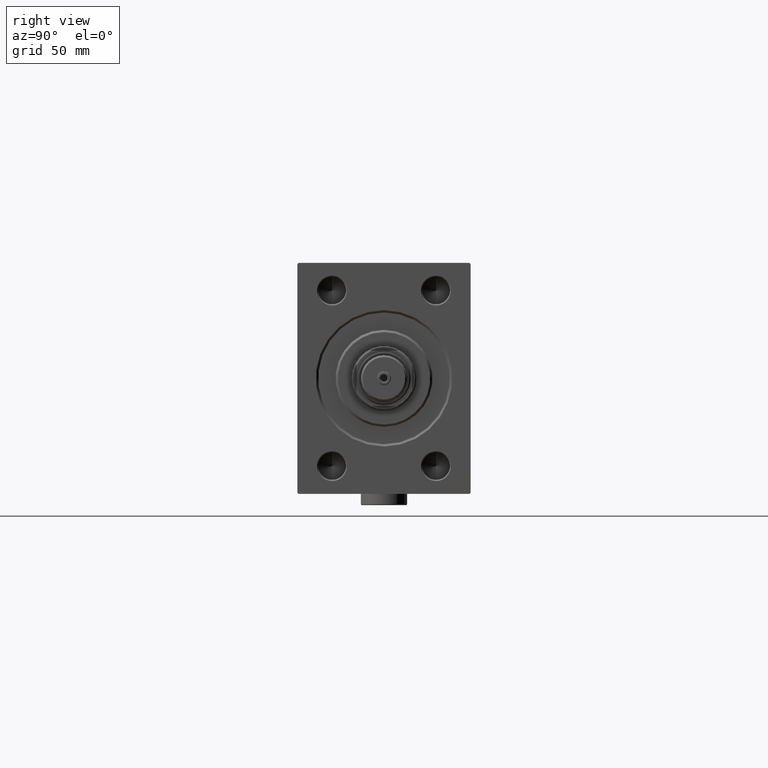
[diagram: clean part render]
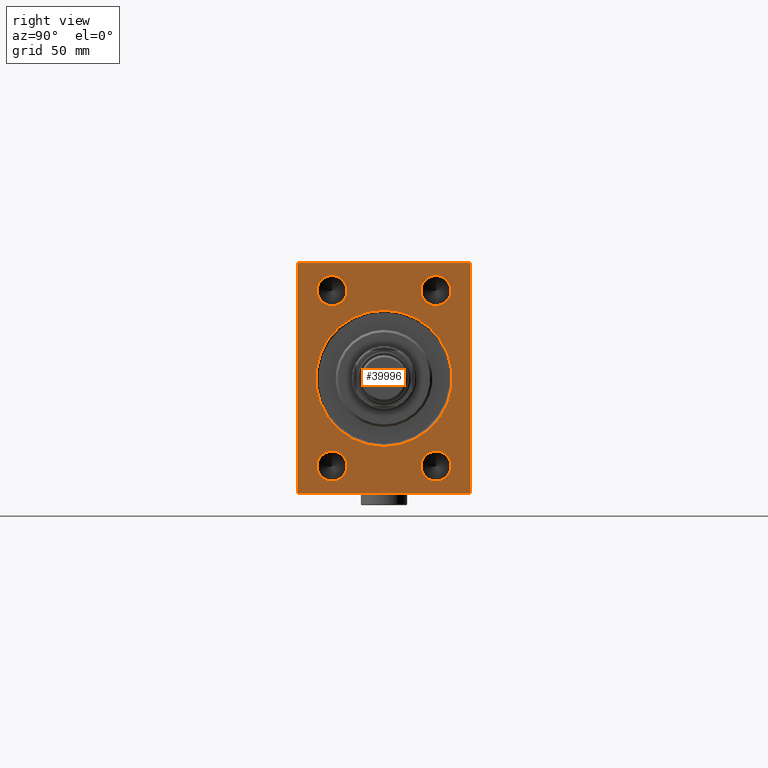
[diagram: same view with one face highlighted and labeled with its STEP entity id]
A machine part, right view. The second image highlights one B-rep face of the part: STEP entity #39996.
In plain terms, the highlighted planar face has unit normal (-1, 0, 0).
Its self-contained STEP definition (entity closure, byte-faithful):
#122 = CARTESIAN_POINT ( 'NONE',  ( 0.000000000000000000, 22.49999999999999289, -31.49999999999996447 ) ) ;
#128 = EDGE_CURVE ( 'NONE', #40399, #1513, #21583, .T. ) ;
#229 = VECTOR ( 'NONE', #32900, 1000.000000000000000 ) ;
#560 = VECTOR ( 'NONE', #655, 1000.000000000000000 ) ;
#615 = AXIS2_PLACEMENT_3D ( 'NONE', #23015, #23264, #27475 ) ;
#655 = DIRECTION ( 'NONE',  ( 0.000000000000000000, -1.000000000000000000, -3.700743415417189125E-16 ) ) ;
#868 = FACE_BOUND ( 'NONE', #35188, .T. ) ;
#1513 = VERTEX_POINT ( 'NONE', #31841 ) ;
#2312 = VECTOR ( 'NONE', #46179, 1000.000000000000114 ) ;
#2750 = AXIS2_PLACEMENT_3D ( 'NONE', #9535, #21103, #9310 ) ;
#2758 = CARTESIAN_POINT ( 'NONE',  ( 0.000000000000000000, -37.50000000000000000, -50.00000000000001421 ) ) ;
#2838 = DIRECTION ( 'NONE',  ( 0.000000000000000000, -0.7071067811865474617, -0.7071067811865474617 ) ) ;
#2857 = EDGE_CURVE ( 'NONE', #20457, #31360, #20756, .T. ) ;
#2867 = DIRECTION ( 'NONE',  ( 0.000000000000000000, 0.000000000000000000, -1.000000000000000000 ) ) ;
#3104 = EDGE_CURVE ( 'NONE', #33817, #48282, #18457, .T. ) ;
#3209 = CARTESIAN_POINT ( 'NONE',  ( 0.000000000000000000, 0.000000000000000000, 0.000000000000000000 ) ) ;
#3449 = LINE ( 'NONE', #33512, #40751 ) ;
#3652 = CARTESIAN_POINT ( 'NONE',  ( 0.000000000000000000, 22.49999999999999289, 44.50000000000003553 ) ) ;
#4666 = LINE ( 'NONE', #26338, #24405 ) ;
#4882 = EDGE_LOOP ( 'NONE', ( #7285, #31708 ) ) ;
#5204 = CIRCLE ( 'NONE', #24868, 6.500000000000033751 ) ;
#5221 = CARTESIAN_POINT ( 'NONE',  ( 0.000000000000000000, 37.00000000000000000, -50.00000000000000000 ) ) ;
#7285 = ORIENTED_EDGE ( 'NONE', *, *, #7533, .T. ) ;
#7452 = AXIS2_PLACEMENT_3D ( 'NONE', #12010, #38412, #15698 ) ;
#7533 = EDGE_CURVE ( 'NONE', #21065, #12390, #29674, .T. ) ;
#8021 = FACE_BOUND ( 'NONE', #28784, .T. ) ;
#8044 = LINE ( 'NONE', #34418, #560 ) ;
#8168 = DIRECTION ( 'NONE',  ( 0.000000000000000000, 0.000000000000000000, -1.000000000000000000 ) ) ;
#8748 = FACE_OUTER_BOUND ( 'NONE', #42128, .T. ) ;
#9310 = DIRECTION ( 'NONE',  ( 0.000000000000000000, 0.000000000000000000, -1.000000000000000000 ) ) ;
#9443 = VERTEX_POINT ( 'NONE', #31434 ) ;
#9535 = CARTESIAN_POINT ( 'NONE',  ( 0.000000000000000000, -22.50000000000000711, -38.00000000000000000 ) ) ;
#9708 = LINE ( 'NONE', #10459, #229 ) ;
#9744 = CARTESIAN_POINT ( 'NONE',  ( 0.000000000000000000, 22.49999999999999289, -38.00000000000000000 ) ) ;
#10050 = CARTESIAN_POINT ( 'NONE',  ( 0.000000000000000000, -22.50000000000000711, 38.00000000000000000 ) ) ;
#10148 = DIRECTION ( 'NONE',  ( 0.000000000000000000, 1.000000000000000000, 1.850371707708594316E-16 ) ) ;
#10197 = DIRECTION ( 'NONE',  ( 0.000000000000000000, 0.000000000000000000, -1.000000000000000000 ) ) ;
#10459 = CARTESIAN_POINT ( 'NONE',  ( 0.000000000000000000, -37.50000000000000000, 49.99999999999998579 ) ) ;
#10781 = DIRECTION ( 'NONE',  ( 1.000000000000000000, 0.000000000000000000, 0.000000000000000000 ) ) ;
#11863 = EDGE_CURVE ( 'NONE', #43427, #37850, #21216, .T. ) ;
#11948 = CARTESIAN_POINT ( 'NONE',  ( 0.000000000000000000, 22.49999999999999289, 38.00000000000000000 ) ) ;
#12010 = CARTESIAN_POINT ( 'NONE',  ( 0.000000000000000000, -22.50000000000000711, -38.00000000000000000 ) ) ;
#12390 = VERTEX_POINT ( 'NONE', #25434 ) ;
#12453 = PLANE ( 'NONE',  #615 ) ;
#12921 = DIRECTION ( 'NONE',  ( 0.000000000000000000, 0.000000000000000000, -1.000000000000000000 ) ) ;
#12930 = CARTESIAN_POINT ( 'NONE',  ( 0.000000000000000000, -36.99999999999998579, -50.00000000000001421 ) ) ;
#13105 = VERTEX_POINT ( 'NONE', #122 ) ;
#13318 = VERTEX_POINT ( 'NONE', #37055 ) ;
#13567 = EDGE_CURVE ( 'NONE', #20354, #13825, #47138, .T. ) ;
#13825 = VERTEX_POINT ( 'NONE', #46114 ) ;
#14051 = CARTESIAN_POINT ( 'NONE',  ( 0.000000000000000000, 22.49999999999999289, -38.00000000000000000 ) ) ;
#14105 = CARTESIAN_POINT ( 'NONE',  ( 0.000000000000000000, 22.49999999999999289, -44.50000000000003553 ) ) ;
#14478 = DIRECTION ( 'NONE',  ( 0.000000000000000000, 0.000000000000000000, -1.000000000000000000 ) ) ;
#14585 = ORIENTED_EDGE ( 'NONE', *, *, #22296, .F. ) ;
#15191 = EDGE_CURVE ( 'NONE', #13105, #44868, #19660, .T. ) ;
#15698 = DIRECTION ( 'NONE',  ( 0.000000000000000000, 0.000000000000000000, -1.000000000000000000 ) ) ;
#15731 = DIRECTION ( 'NONE',  ( 0.000000000000000000, -1.387778780781445429E-16, 1.000000000000000000 ) ) ;
#16536 = ORIENTED_EDGE ( 'NONE', *, *, #2857, .T. ) ;
#16570 = EDGE_CURVE ( 'NONE', #9443, #13825, #4666, .T. ) ;
#16760 = CARTESIAN_POINT ( 'NONE',  ( 0.000000000000000000, 36.99999999999998579, 50.00000000000001421 ) ) ;
#16867 = AXIS2_PLACEMENT_3D ( 'NONE', #10050, #10781, #25814 ) ;
#17277 = EDGE_CURVE ( 'NONE', #9443, #37850, #21537, .T. ) ;
#17678 = DIRECTION ( 'NONE',  ( 1.000000000000000000, 0.000000000000000000, 0.000000000000000000 ) ) ;
#18422 = CIRCLE ( 'NONE', #7452, 6.500000000000033751 ) ;
#18457 = CIRCLE ( 'NONE', #2750, 6.500000000000033751 ) ;
#18598 = AXIS2_PLACEMENT_3D ( 'NONE', #14051, #40937, #29323 ) ;
#19660 = CIRCLE ( 'NONE', #46498, 6.500000000000033751 ) ;
#20354 = VERTEX_POINT ( 'NONE', #33404 ) ;
#20457 = VERTEX_POINT ( 'NONE', #37347 ) ;
#20604 = LINE ( 'NONE', #47523, #31130 ) ;
#20756 = CIRCLE ( 'NONE', #27094, 29.50000000000004263 ) ;
#21065 = VERTEX_POINT ( 'NONE', #3652 ) ;
#21103 = DIRECTION ( 'NONE',  ( 1.000000000000000000, 0.000000000000000000, 0.000000000000000000 ) ) ;
#21216 = LINE ( 'NONE', #2758, #43297 ) ;
#21245 = CARTESIAN_POINT ( 'NONE',  ( 0.000000000000000000, 3.612708057484697126E-15, -29.50000000000004263 ) ) ;
#21537 = LINE ( 'NONE', #40818, #33162 ) ;
#21583 = CIRCLE ( 'NONE', #16867, 6.500000000000033751 ) ;
#21910 = DIRECTION ( 'NONE',  ( 1.000000000000000000, 0.000000000000000000, 0.000000000000000000 ) ) ;
#22296 = EDGE_CURVE ( 'NONE', #35315, #13318, #9708, .T. ) ;
#23015 = CARTESIAN_POINT ( 'NONE',  ( 0.000000000000000000, 0.000000000000000000, 0.000000000000000000 ) ) ;
#23196 = ORIENTED_EDGE ( 'NONE', *, *, #17277, .T. ) ;
#23264 = DIRECTION ( 'NONE',  ( 1.000000000000000000, 0.000000000000000000, 0.000000000000000000 ) ) ;
#23986 = ORIENTED_EDGE ( 'NONE', *, *, #40834, .T. ) ;
#24405 = VECTOR ( 'NONE', #15731, 1000.000000000000000 ) ;
#24433 = ORIENTED_EDGE ( 'NONE', *, *, #33363, .T. ) ;
#24868 = AXIS2_PLACEMENT_3D ( 'NONE', #11948, #17678, #14478 ) ;
#25434 = CARTESIAN_POINT ( 'NONE',  ( 0.000000000000000000, 22.49999999999999289, 31.49999999999996447 ) ) ;
#25814 = DIRECTION ( 'NONE',  ( 0.000000000000000000, 0.000000000000000000, -1.000000000000000000 ) ) ;
#26189 = VERTEX_POINT ( 'NONE', #43347 ) ;
#26338 = CARTESIAN_POINT ( 'NONE',  ( 0.000000000000000000, 37.50000000000000000, -50.00000000000000000 ) ) ;
#27094 = AXIS2_PLACEMENT_3D ( 'NONE', #3209, #21910, #48322 ) ;
#27475 = DIRECTION ( 'NONE',  ( 0.000000000000000000, 0.000000000000000000, -1.000000000000000000 ) ) ;
#27590 = EDGE_LOOP ( 'NONE', ( #16536, #33701 ) ) ;
#28784 = EDGE_LOOP ( 'NONE', ( #23986, #35354 ) ) ;
#28813 = CIRCLE ( 'NONE', #18598, 6.500000000000033751 ) ;
#29073 = EDGE_CURVE ( 'NONE', #48282, #33817, #18422, .T. ) ;
#29323 = DIRECTION ( 'NONE',  ( 0.000000000000000000, 0.000000000000000000, -1.000000000000000000 ) ) ;
#29495 = EDGE_CURVE ( 'NONE', #31360, #20457, #45264, .T. ) ;
#29674 = CIRCLE ( 'NONE', #35915, 6.500000000000033751 ) ;
#30198 = FACE_BOUND ( 'NONE', #27590, .T. ) ;
#30611 = ORIENTED_EDGE ( 'NONE', *, *, #16570, .F. ) ;
#30906 = CARTESIAN_POINT ( 'NONE',  ( 0.000000000000000000, -22.50000000000000711, -31.49999999999996447 ) ) ;
#31130 = VECTOR ( 'NONE', #39882, 1000.000000000000114 ) ;
#31360 = VERTEX_POINT ( 'NONE', #21245 ) ;
#31434 = CARTESIAN_POINT ( 'NONE',  ( 0.000000000000000000, 37.50000000000000000, -49.50000000000000000 ) ) ;
#31708 = ORIENTED_EDGE ( 'NONE', *, *, #46393, .T. ) ;
#31841 = CARTESIAN_POINT ( 'NONE',  ( 0.000000000000000000, -22.50000000000000711, 44.50000000000003553 ) ) ;
#32086 = CIRCLE ( 'NONE', #37597, 6.500000000000033751 ) ;
#32900 = DIRECTION ( 'NONE',  ( 0.000000000000000000, 0.000000000000000000, -1.000000000000000000 ) ) ;
#33162 = VECTOR ( 'NONE', #2838, 1000.000000000000114 ) ;
#33363 = EDGE_CURVE ( 'NONE', #44868, #13105, #28813, .T. ) ;
#33404 = CARTESIAN_POINT ( 'NONE',  ( 0.000000000000000000, 36.99999999999998579, 50.00000000000001421 ) ) ;
#33512 = CARTESIAN_POINT ( 'NONE',  ( 0.000000000000000000, -36.99999999999998579, -50.00000000000001421 ) ) ;
#33674 = ORIENTED_EDGE ( 'NONE', *, *, #48493, .F. ) ;
#33701 = ORIENTED_EDGE ( 'NONE', *, *, #29495, .T. ) ;
#33817 = VERTEX_POINT ( 'NONE', #30906 ) ;
#34418 = CARTESIAN_POINT ( 'NONE',  ( 0.000000000000000000, 37.49999999999998579, 50.00000000000001421 ) ) ;
#34525 = CARTESIAN_POINT ( 'NONE',  ( 0.000000000000000000, -22.50000000000000711, 31.49999999999996447 ) ) ;
#35188 = EDGE_LOOP ( 'NONE', ( #46688, #43489 ) ) ;
#35315 = VERTEX_POINT ( 'NONE', #35974 ) ;
#35354 = ORIENTED_EDGE ( 'NONE', *, *, #128, .T. ) ;
#35782 = AXIS2_PLACEMENT_3D ( 'NONE', #41964, #45178, #8168 ) ;
#35915 = AXIS2_PLACEMENT_3D ( 'NONE', #36577, #44758, #10197 ) ;
#35974 = CARTESIAN_POINT ( 'NONE',  ( 0.000000000000000000, -37.50000000000000000, 49.49999999999998579 ) ) ;
#36211 = EDGE_CURVE ( 'NONE', #43427, #13318, #3449, .T. ) ;
#36560 = ORIENTED_EDGE ( 'NONE', *, *, #15191, .T. ) ;
#36577 = CARTESIAN_POINT ( 'NONE',  ( 0.000000000000000000, 22.49999999999999289, 38.00000000000000000 ) ) ;
#37055 = CARTESIAN_POINT ( 'NONE',  ( 0.000000000000000000, -37.50000000000000000, -49.50000000000000000 ) ) ;
#37347 = CARTESIAN_POINT ( 'NONE',  ( 0.000000000000000000, 0.000000000000000000, 29.50000000000004263 ) ) ;
#37597 = AXIS2_PLACEMENT_3D ( 'NONE', #39324, #46723, #12921 ) ;
#37850 = VERTEX_POINT ( 'NONE', #5221 ) ;
#37855 = FACE_BOUND ( 'NONE', #4882, .T. ) ;
#38412 = DIRECTION ( 'NONE',  ( 1.000000000000000000, 0.000000000000000000, 0.000000000000000000 ) ) ;
#39324 = CARTESIAN_POINT ( 'NONE',  ( 0.000000000000000000, -22.50000000000000711, 38.00000000000000000 ) ) ;
#39853 = DIRECTION ( 'NONE',  ( 1.000000000000000000, 0.000000000000000000, 0.000000000000000000 ) ) ;
#39877 = CARTESIAN_POINT ( 'NONE',  ( 0.000000000000000000, -22.50000000000000711, -44.50000000000003553 ) ) ;
#39882 = DIRECTION ( 'NONE',  ( -0.000000000000000000, 0.7071067811865474617, 0.7071067811865474617 ) ) ;
#39996 = ADVANCED_FACE ( 'NONE', ( #30198, #868, #8021, #37855, #42555, #8748 ), #12453, .F. ) ;
#40399 = VERTEX_POINT ( 'NONE', #34525 ) ;
#40751 = VECTOR ( 'NONE', #48577, 1000.000000000000114 ) ;
#40818 = CARTESIAN_POINT ( 'NONE',  ( 0.000000000000000000, 37.50000000000000000, -49.50000000000000000 ) ) ;
#40834 = EDGE_CURVE ( 'NONE', #1513, #40399, #32086, .T. ) ;
#40937 = DIRECTION ( 'NONE',  ( 1.000000000000000000, 0.000000000000000000, 0.000000000000000000 ) ) ;
#41492 = ORIENTED_EDGE ( 'NONE', *, *, #13567, .T. ) ;
#41964 = CARTESIAN_POINT ( 'NONE',  ( 0.000000000000000000, 0.000000000000000000, 0.000000000000000000 ) ) ;
#42128 = EDGE_LOOP ( 'NONE', ( #14585, #42725, #33674, #41492, #30611, #23196, #44746, #43338 ) ) ;
#42555 = FACE_BOUND ( 'NONE', #47272, .T. ) ;
#42725 = ORIENTED_EDGE ( 'NONE', *, *, #44471, .T. ) ;
#43297 = VECTOR ( 'NONE', #10148, 1000.000000000000000 ) ;
#43338 = ORIENTED_EDGE ( 'NONE', *, *, #36211, .T. ) ;
#43347 = CARTESIAN_POINT ( 'NONE',  ( 0.000000000000000000, -37.00000000000000000, 49.99999999999998579 ) ) ;
#43427 = VERTEX_POINT ( 'NONE', #12930 ) ;
#43489 = ORIENTED_EDGE ( 'NONE', *, *, #29073, .T. ) ;
#44471 = EDGE_CURVE ( 'NONE', #35315, #26189, #20604, .T. ) ;
#44746 = ORIENTED_EDGE ( 'NONE', *, *, #11863, .F. ) ;
#44758 = DIRECTION ( 'NONE',  ( 1.000000000000000000, 0.000000000000000000, 0.000000000000000000 ) ) ;
#44868 = VERTEX_POINT ( 'NONE', #14105 ) ;
#45178 = DIRECTION ( 'NONE',  ( 1.000000000000000000, 0.000000000000000000, 0.000000000000000000 ) ) ;
#45264 = CIRCLE ( 'NONE', #35782, 29.50000000000004263 ) ;
#46114 = CARTESIAN_POINT ( 'NONE',  ( 0.000000000000000000, 37.49999999999998579, 49.50000000000001421 ) ) ;
#46179 = DIRECTION ( 'NONE',  ( -0.000000000000000000, 0.7071067811865474617, -0.7071067811865474617 ) ) ;
#46393 = EDGE_CURVE ( 'NONE', #12390, #21065, #5204, .T. ) ;
#46498 = AXIS2_PLACEMENT_3D ( 'NONE', #9744, #39853, #2867 ) ;
#46688 = ORIENTED_EDGE ( 'NONE', *, *, #3104, .T. ) ;
#46723 = DIRECTION ( 'NONE',  ( 1.000000000000000000, 0.000000000000000000, 0.000000000000000000 ) ) ;
#47138 = LINE ( 'NONE', #16760, #2312 ) ;
#47272 = EDGE_LOOP ( 'NONE', ( #36560, #24433 ) ) ;
#47523 = CARTESIAN_POINT ( 'NONE',  ( 0.000000000000000000, -37.50000000000000000, 49.49999999999998579 ) ) ;
#48282 = VERTEX_POINT ( 'NONE', #39877 ) ;
#48322 = DIRECTION ( 'NONE',  ( 0.000000000000000000, 0.000000000000000000, -1.000000000000000000 ) ) ;
#48493 = EDGE_CURVE ( 'NONE', #20354, #26189, #8044, .T. ) ;
#48577 = DIRECTION ( 'NONE',  ( -0.000000000000000000, -0.7071067811865474617, 0.7071067811865474617 ) ) ;